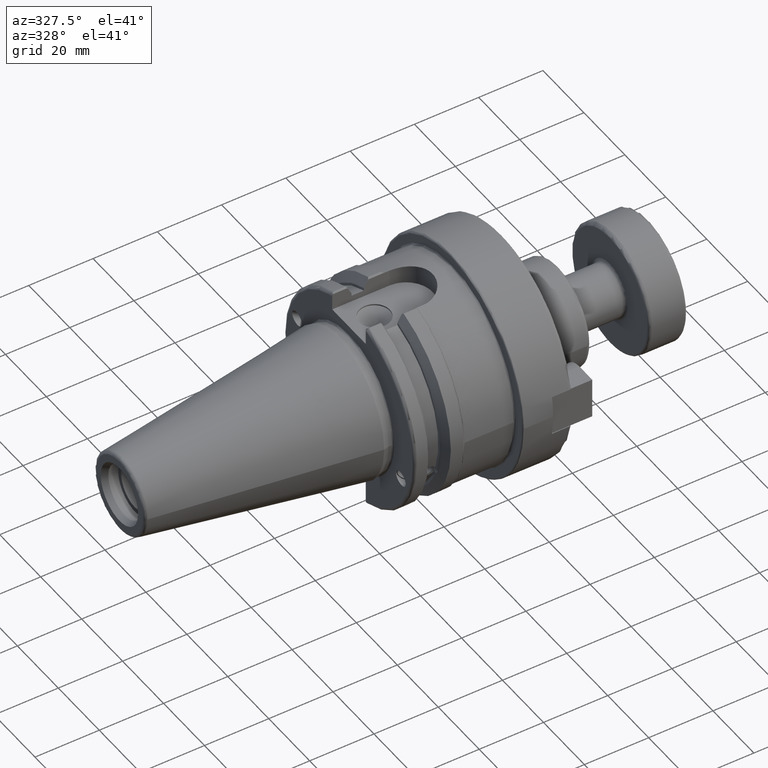
[diagram: clean part render]
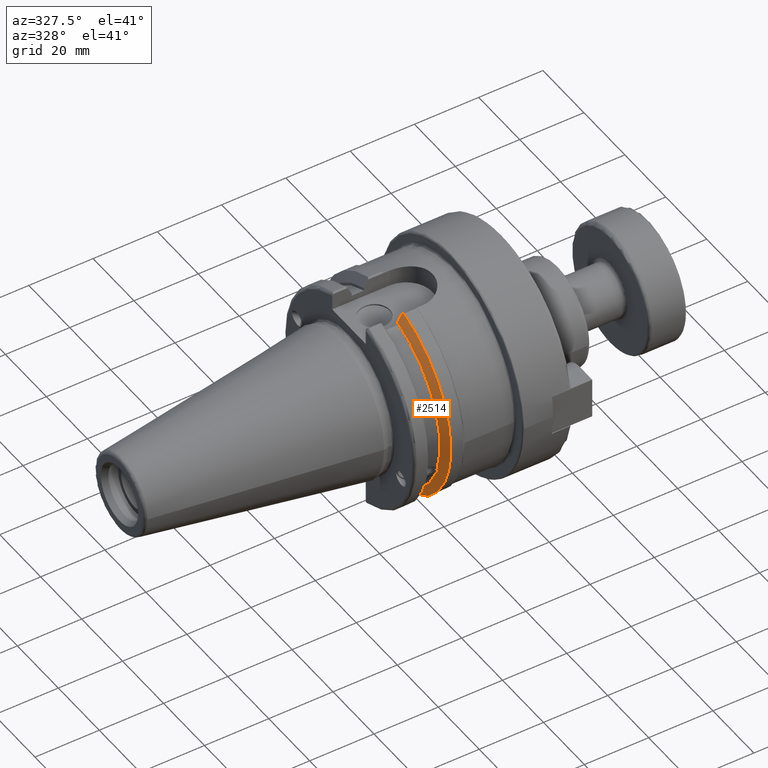
[diagram: same view with one face highlighted and labeled with its STEP entity id]
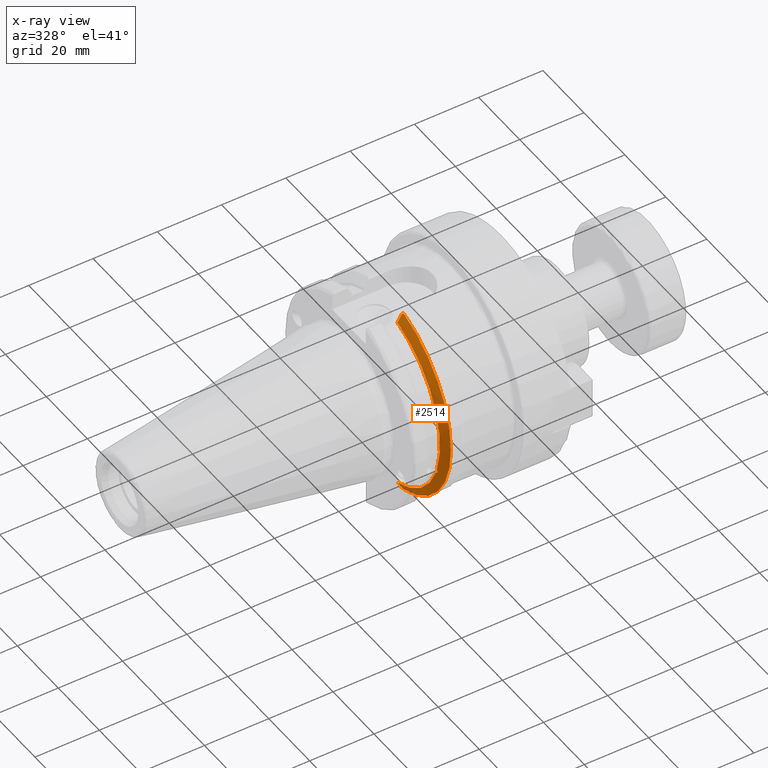
[diagram: x-ray of the same camera — body ghosted, the highlighted face saturated]
A machine part, auxiliary view. The second image highlights one B-rep face of the part: STEP entity #2514.
The next image is the same camera in x-ray: the body ghosted, the highlighted face saturated — about 4% of this face is hidden behind the body in this view.
In plain terms, the highlighted conical surface has half-angle 60 deg.
Its self-contained STEP definition (entity closure, byte-faithful):
#53=(
BOUNDED_CURVE()
B_SPLINE_CURVE(2,(#4329,#4330,#4331),.UNSPECIFIED.,.F.,.F.)
B_SPLINE_CURVE_WITH_KNOTS((3,3),(0.,0.276549142795441),.UNSPECIFIED.)
CURVE()
GEOMETRIC_REPRESENTATION_ITEM()
RATIONAL_B_SPLINE_CURVE((1.,1.00095203903848,1.0003161444499))
REPRESENTATION_ITEM('')
);
#54=(
BOUNDED_CURVE()
B_SPLINE_CURVE(2,(#4333,#4334,#4335),.UNSPECIFIED.,.F.,.F.)
B_SPLINE_CURVE_WITH_KNOTS((3,3),(0.,0.0639048713675827),.UNSPECIFIED.)
CURVE()
GEOMETRIC_REPRESENTATION_ITEM()
RATIONAL_B_SPLINE_CURVE((1.,1.0002844421829,1.00047644010585))
REPRESENTATION_ITEM('')
);
#55=(
BOUNDED_CURVE()
B_SPLINE_CURVE(2,(#4339,#4340,#4341),.UNSPECIFIED.,.F.,.F.)
B_SPLINE_CURVE_WITH_KNOTS((3,3),(0.329353533631235,0.393258405001021),
 .UNSPECIFIED.)
CURVE()
GEOMETRIC_REPRESENTATION_ITEM()
RATIONAL_B_SPLINE_CURVE((1.00047644010603,1.00028444218301,1.))
REPRESENTATION_ITEM('')
);
#56=(
BOUNDED_CURVE()
B_SPLINE_CURVE(2,(#4343,#4344,#4345),.UNSPECIFIED.,.F.,.F.)
B_SPLINE_CURVE_WITH_KNOTS((3,3),(0.0550586467398929,0.331607789535851),
 .UNSPECIFIED.)
CURVE()
GEOMETRIC_REPRESENTATION_ITEM()
RATIONAL_B_SPLINE_CURVE((1.00031614444973,1.00095203903796,1.))
REPRESENTATION_ITEM('')
);
#160=CONICAL_SURFACE('',#2822,30.3546886482472,1.0471975511966);
#246=CIRCLE('',#2823,28.9593772964944);
#247=CIRCLE('',#2824,31.75);
#248=CIRCLE('',#2825,28.9593772964944);
#376=FACE_OUTER_BOUND('',#535,.T.);
#535=EDGE_LOOP('',(#1865,#1866,#1867,#1868,#1869,#1870,#1871,#1872,#1873));
#998=B_SPLINE_CURVE_WITH_KNOTS('',3,(#4236,#4237,#4238,#4239,#4240,#4241,
#4242,#4243),.UNSPECIFIED.,.F.,.F.,(4,2,2,4),(0.451995700189025,0.464547828547662,
0.504528771685167,0.544509714822672),.UNSPECIFIED.);
#1002=B_SPLINE_CURVE_WITH_KNOTS('',3,(#4298,#4299,#4300,#4301,#4302,#4303,
#4304,#4305),.UNSPECIFIED.,.F.,.F.,(4,2,2,4),(0.544509714822672,0.584490657960178,
0.624471601097683,0.637023729456322),.UNSPECIFIED.);
#1097=VERTEX_POINT('',#4233);
#1098=VERTEX_POINT('',#4235);
#1105=VERTEX_POINT('',#4296);
#1111=VERTEX_POINT('',#4326);
#1112=VERTEX_POINT('',#4328);
#1113=VERTEX_POINT('',#4332);
#1114=VERTEX_POINT('',#4336);
#1115=VERTEX_POINT('',#4338);
#1116=VERTEX_POINT('',#4342);
#1378=EDGE_CURVE('',#1098,#1097,#998,.T.);
#1386=EDGE_CURVE('',#1097,#1105,#1002,.T.);
#1395=EDGE_CURVE('',#1105,#1111,#246,.T.);
#1396=EDGE_CURVE('',#1111,#1112,#53,.T.);
#1397=EDGE_CURVE('',#1113,#1112,#54,.T.);
#1398=EDGE_CURVE('',#1114,#1113,#247,.T.);
#1399=EDGE_CURVE('',#1115,#1114,#55,.T.);
#1400=EDGE_CURVE('',#1115,#1116,#56,.T.);
#1401=EDGE_CURVE('',#1116,#1098,#248,.T.);
#1865=ORIENTED_EDGE('',*,*,#1378,.T.);
#1866=ORIENTED_EDGE('',*,*,#1386,.T.);
#1867=ORIENTED_EDGE('',*,*,#1395,.T.);
#1868=ORIENTED_EDGE('',*,*,#1396,.T.);
#1869=ORIENTED_EDGE('',*,*,#1397,.F.);
#1870=ORIENTED_EDGE('',*,*,#1398,.F.);
#1871=ORIENTED_EDGE('',*,*,#1399,.F.);
#1872=ORIENTED_EDGE('',*,*,#1400,.T.);
#1873=ORIENTED_EDGE('',*,*,#1401,.T.);
#2514=ADVANCED_FACE('',(#376),#160,.T.);
#2822=AXIS2_PLACEMENT_3D('',#4325,#3281,#3282);
#2823=AXIS2_PLACEMENT_3D('',#4327,#3283,#3284);
#2824=AXIS2_PLACEMENT_3D('',#4337,#3285,#3286);
#2825=AXIS2_PLACEMENT_3D('',#4346,#3287,#3288);
#3281=DIRECTION('center_axis',(1.,0.,0.));
#3282=DIRECTION('ref_axis',(0.,-1.,-1.22464679914735E-16));
#3283=DIRECTION('center_axis',(1.,0.,0.));
#3284=DIRECTION('ref_axis',(0.,0.,-1.));
#3285=DIRECTION('center_axis',(1.,0.,0.));
#3286=DIRECTION('ref_axis',(0.,0.,-1.));
#3287=DIRECTION('center_axis',(1.,0.,0.));
#3288=DIRECTION('ref_axis',(0.,0.,-1.));
#4233=CARTESIAN_POINT('',(13.2341,-27.51401829017,-10.0142836826777));
#4235=CARTESIAN_POINT('',(13.0491,-27.4956274489925,-9.09043478536245));
#4236=CARTESIAN_POINT('Ctrl Pts',(13.0491,-27.4956274489925,-9.09043478536245));
#4237=CARTESIAN_POINT('Ctrl Pts',(13.0632204071996,-27.5087667900418,-9.12860597076217));
#4238=CARTESIAN_POINT('Ctrl Pts',(13.0766929817857,-27.5206055003513,-9.16696618806877));
#4239=CARTESIAN_POINT('Ctrl Pts',(13.130081441159,-27.5642934663232,-9.32791534028656));
#4240=CARTESIAN_POINT('Ctrl Pts',(13.1682197084175,-27.5867382255984,-9.46717946402648));
#4241=CARTESIAN_POINT('Ctrl Pts',(13.2204106446058,-27.5847569104122,-9.74771639360671));
#4242=CARTESIAN_POINT('Ctrl Pts',(13.2341,-27.559599249844,-9.8890510252165));
#4243=CARTESIAN_POINT('Ctrl Pts',(13.2341,-27.51401829017,-10.0142836826777));
#4296=CARTESIAN_POINT('',(13.0491,-26.9060914640648,-10.7101715919071));
#4298=CARTESIAN_POINT('Ctrl Pts',(13.2341,-27.51401829017,-10.0142836826777));
#4299=CARTESIAN_POINT('Ctrl Pts',(13.2341,-27.4684373304961,-10.139516340139));
#4300=CARTESIAN_POINT('Ctrl Pts',(13.2204106446058,-27.3968610665578,-10.2639559818059));
#4301=CARTESIAN_POINT('Ctrl Pts',(13.1682197084175,-27.2180531796526,-10.4801333026531));
#4302=CARTESIAN_POINT('Ctrl Pts',(13.130081441159,-27.1113422433189,-10.5723885976054));
#4303=CARTESIAN_POINT('Ctrl Pts',(13.0766929817857,-26.9744191989197,-10.6676007180673));
#4304=CARTESIAN_POINT('Ctrl Pts',(13.0632204071996,-26.9406927482839,-10.6893765730703));
#4305=CARTESIAN_POINT('Ctrl Pts',(13.0491,-26.9060914640648,-10.7101715919071));
#4325=CARTESIAN_POINT('Origin',(13.8546833845378,0.,0.));
#4326=CARTESIAN_POINT('',(13.0491,-8.19,-27.7771386827498));
#4327=CARTESIAN_POINT('Origin',(13.0491,0.,0.));
#4328=CARTESIAN_POINT('',(14.3815146964874,-8.19,-30.1755016258903));
#4329=CARTESIAN_POINT('Ctrl Pts',(13.0491,-8.19,-27.7771386827498));
#4330=CARTESIAN_POINT('Ctrl Pts',(13.6877364384886,-8.19,-28.930368953993));
#4331=CARTESIAN_POINT('Ctrl Pts',(14.3815146964874,-8.19,-30.1755016258903));
#4332=CARTESIAN_POINT('',(14.6602667690756,-8.67204822802686,-30.5427254764662));
#4333=CARTESIAN_POINT('Ctrl Pts',(14.6602667690756,-8.67204822802687,-30.5427254764662));
#4334=CARTESIAN_POINT('Ctrl Pts',(14.5192085187837,-8.42917748262644,-30.357706789263));
#4335=CARTESIAN_POINT('Ctrl Pts',(14.3815146964874,-8.19,-30.1755016258903));
#4336=CARTESIAN_POINT('',(14.6602667690756,-8.67204822802685,30.5427254764662));
#4337=CARTESIAN_POINT('Origin',(14.6602667690756,0.,0.));
#4338=CARTESIAN_POINT('',(14.3815146964874,-8.18999999999999,30.1755016258903));
#4339=CARTESIAN_POINT('Ctrl Pts',(14.3815146964874,-8.19,30.1755016258903));
#4340=CARTESIAN_POINT('Ctrl Pts',(14.5192085187884,-8.42917748263459,30.3577067892692));
#4341=CARTESIAN_POINT('Ctrl Pts',(14.6602667690756,-8.67204822802686,30.5427254764662));
#4342=CARTESIAN_POINT('',(13.0491,-8.19,27.7771386827498));
#4343=CARTESIAN_POINT('Ctrl Pts',(14.3815146964874,-8.18999999999999,30.1755016258903));
#4344=CARTESIAN_POINT('Ctrl Pts',(13.6877364384816,-8.18999999999999,28.9303689539805));
#4345=CARTESIAN_POINT('Ctrl Pts',(13.0491,-8.19,27.7771386827498));
#4346=CARTESIAN_POINT('Origin',(13.0491,0.,0.));